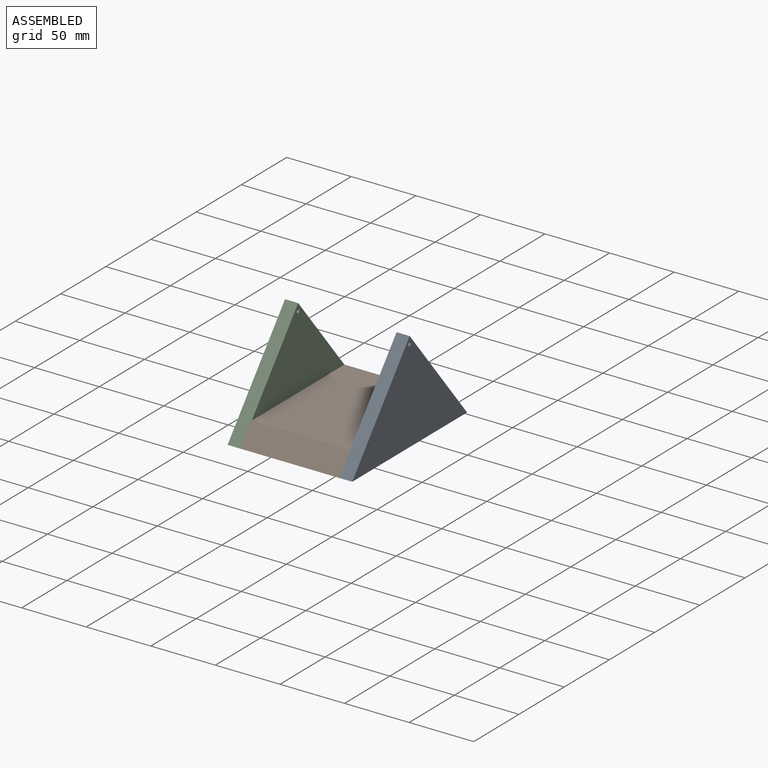
[diagram: assembled view]
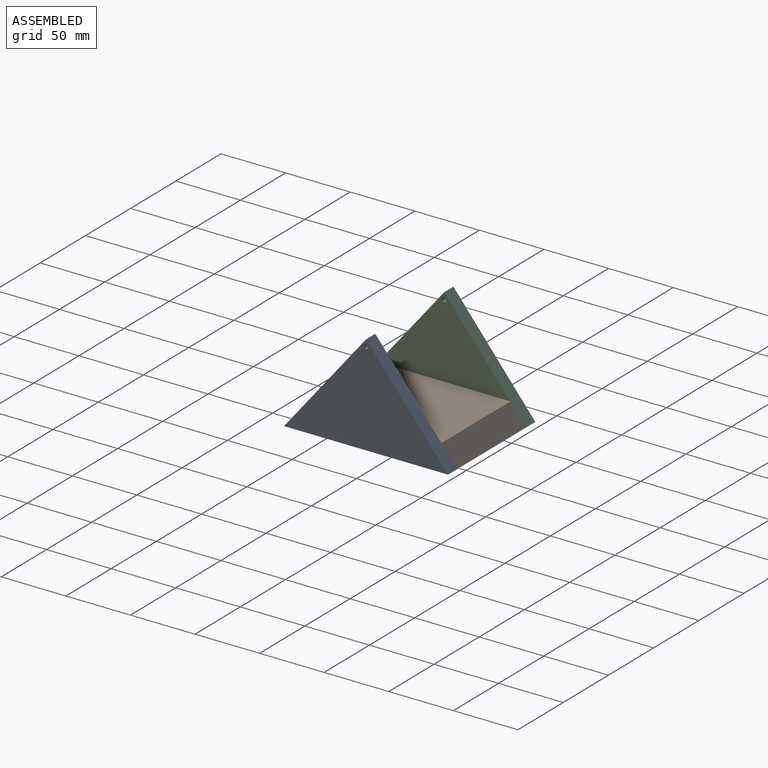
[diagram: assembled view, second angle]
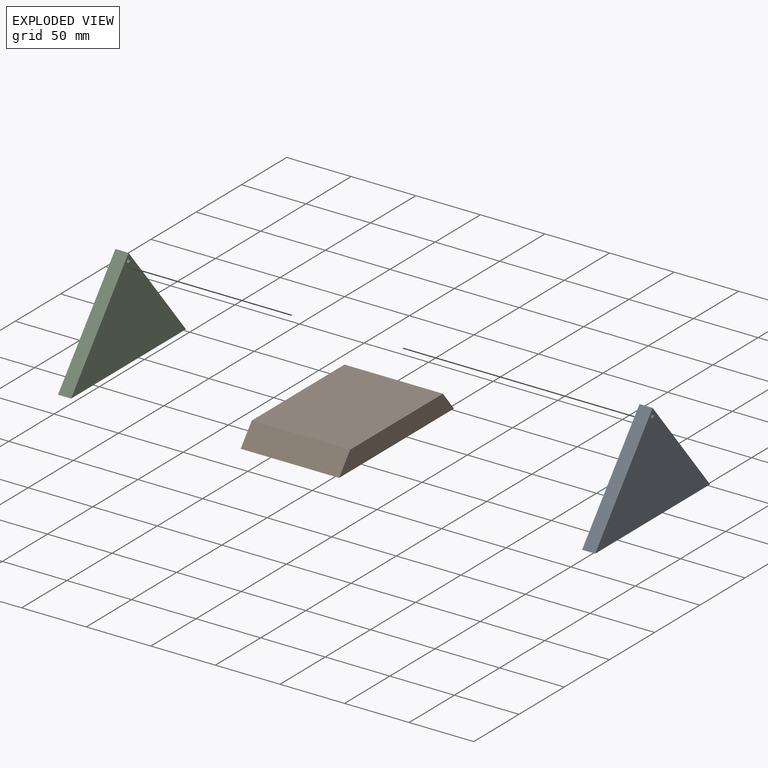
[diagram: exploded view]
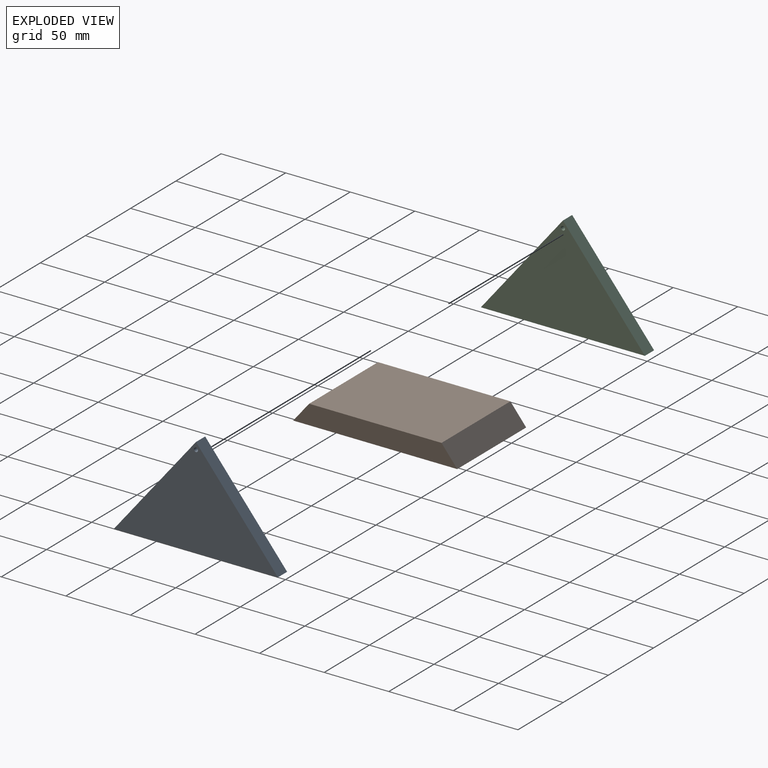
[diagram: exploded view, second angle]
ASSEMBLY  parts=3 mates=2
PART A: 6 faces, bbox 10.2x127x77.7 mm
  f0: plane 77.72x63.46mm, normal (0,0.77,0.63), area 1019.4mm2, adj f1,f2,f3,f4
  f1: plane 77.72x63.54mm, normal (0,-0.77,0.63), area 1019.9mm2, adj f0,f2,f3,f4
  f2: plane 127x10.16mm, normal (0,0,-1), area 1290.3mm2, adj f0,f1,f3,f4
  f3: plane 127x77.72mm, normal (1,0,0), area 4927.2mm2, adj f0,f1,f2,f5
  f4: plane 127x77.72mm, normal (-1,0,0), area 4927.2mm2, adj f0,f1,f2,f5
  f5: cylinder r=1.59mm len=10.16mm, axis (1,0,0), area 101.3mm2, adj f3,f4
PART B: 6 faces, bbox 76.2x127x15.1 mm
  f0: plane 102.48x76.2mm, normal (0,0,1), area 7808.8mm2, adj f1,f2,f4,f5
  f1: plane 127x15.07mm, normal (-1,0,0), area 1728.9mm2, adj f0,f3,f4,f5
  f2: plane 127x15.07mm, normal (1,0,0), area 1728.9mm2, adj f0,f3,f4,f5
  f3: plane 127x76.2mm, normal (0,0,-1), area 9677.4mm2, adj f1,f2,f4,f5
  f4: plane 76.2x15.07mm, normal (0,0.78,0.63), area 1477.2mm2, adj f0,f1,f2,f3
  f5: plane 76.2x15.07mm, normal (0,-0.77,0.63), area 1483.4mm2, adj f0,f1,f2,f3
PART C: same geometry as A
PLACE A t=(18.31,-16.01,30.25)mm
PLACE B t=(18.31,-16.05,30.29)mm
PLACE C t=(-68.05,-16.01,30.25)mm
MATE fastened A.f4 <-> B.f2  axis (-1,0,0) through (56.41,-16.05,-47.46)mm
MATE fastened C.f3 <-> B.f1  axis (1,0,0) through (-19.79,-16.05,-47.46)mm
